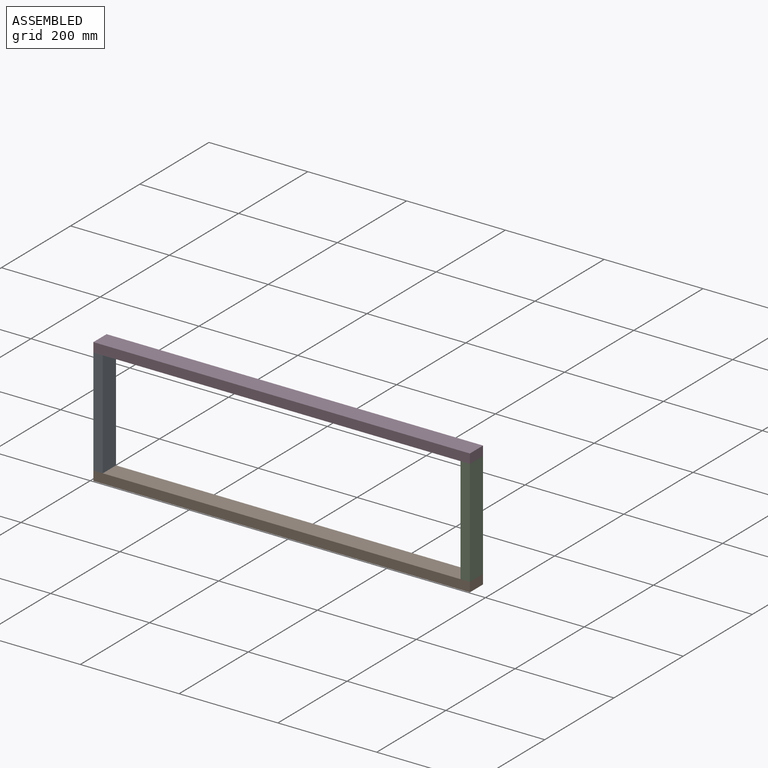
[diagram: assembled view]
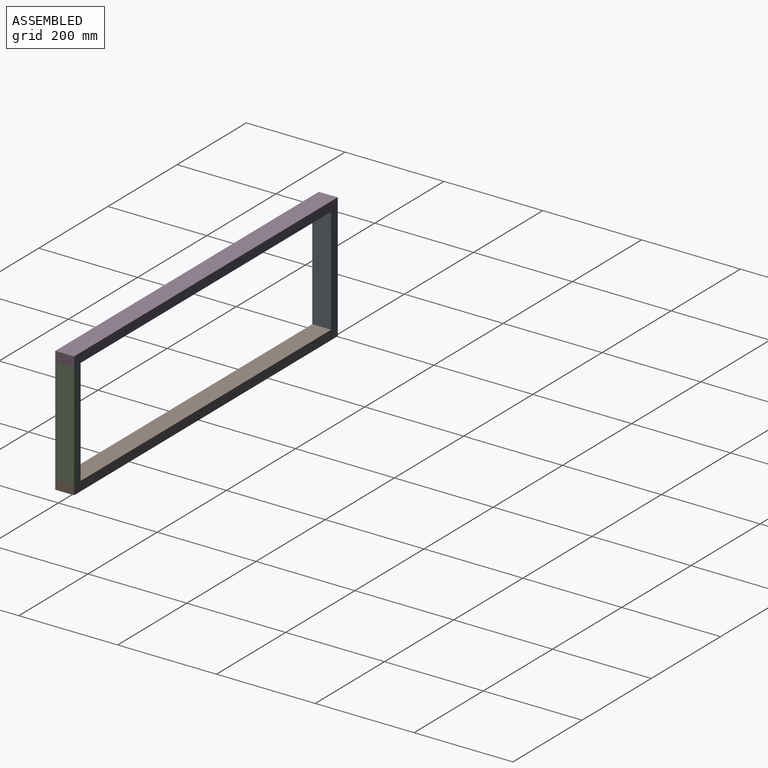
[diagram: assembled view, second angle]
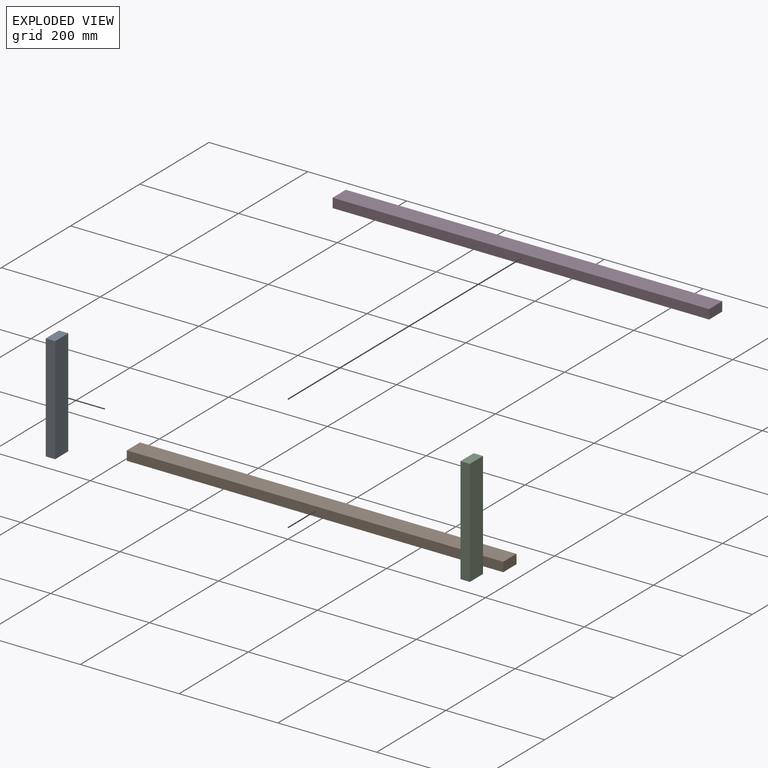
[diagram: exploded view]
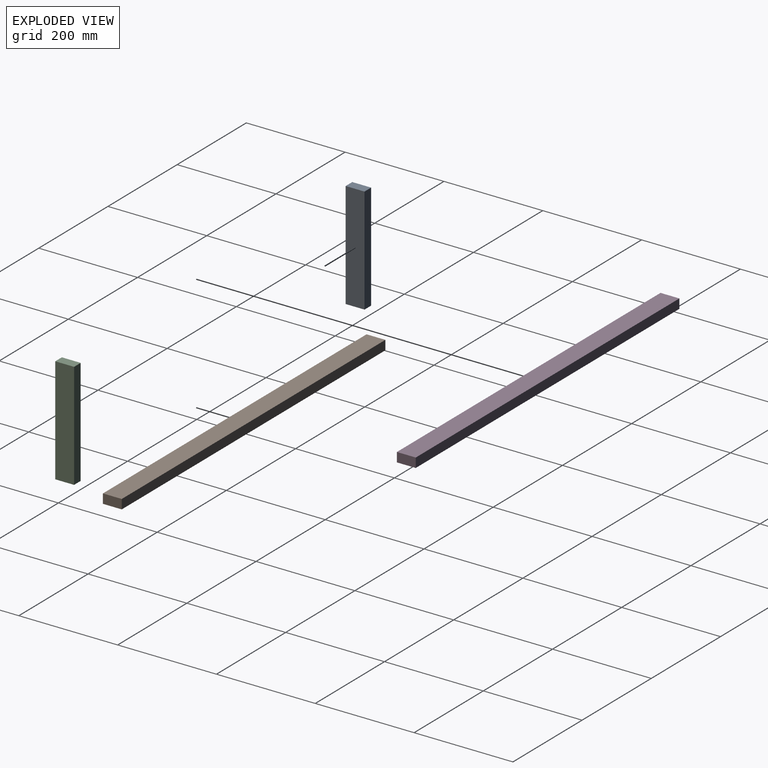
[diagram: exploded view, second angle]
ASSEMBLY  parts=4 mates=9
PART A: 6 faces, bbox 215.9x38.1x19.1 mm
  f0: plane 215.9x38.1mm, normal (0,0,-1), area 8225.8mm2, adj f1,f3,f4,f5
  f1: plane 38.1x19.05mm, normal (1,0,0), area 725.8mm2, adj f0,f2,f4,f5
  f2: plane 215.9x38.1mm, normal (0,0,1), area 8225.8mm2, adj f1,f3,f4,f5
  f3: plane 38.1x19.05mm, normal (-1,0,0), area 725.8mm2, adj f0,f2,f4,f5
  f4: plane 215.9x19.05mm, normal (0,-1,0), area 4112.9mm2, adj f0,f1,f2,f3
  f5: plane 215.9x19.05mm, normal (0,1,0), area 4112.9mm2, adj f0,f1,f2,f3
PART B: 6 faces, bbox 762x38.1x19.1 mm
  f0: plane 762x38.1mm, normal (0,0,-1), area 29032.2mm2, adj f1,f3,f4,f5
  f1: plane 38.1x19.05mm, normal (1,0,0), area 725.8mm2, adj f0,f2,f4,f5
  f2: plane 762x38.1mm, normal (0,0,1), area 29032.2mm2, adj f1,f3,f4,f5
  f3: plane 38.1x19.05mm, normal (-1,0,0), area 725.8mm2, adj f0,f2,f4,f5
  f4: plane 762x19.05mm, normal (0,-1,0), area 14516.1mm2, adj f0,f1,f2,f3
  f5: plane 762x19.05mm, normal (0,1,0), area 14516.1mm2, adj f0,f1,f2,f3
PART C: same geometry as A
PART D: same geometry as B
PLACE A rot(axis=(0,-1,0),90deg) t=(-1361.16,19.05,251.37)mm
PLACE B t=(-618.21,19.05,16.42)mm
PLACE C rot(axis=(0,-1,0),90deg) t=(-618.21,19.05,251.37)mm
PLACE D t=(-618.21,19.05,251.37)mm
MATE planar D.f5 <-> A.f5  axis (0,1,0) through (-999.21,19.05,260.9)mm
MATE planar D.f5 <-> C.f5  axis (0,1,0) through (-999.21,19.05,260.9)mm
MATE planar A.f2 <-> B.f3  axis (-1,0,0) through (-1380.21,0,143.42)mm
MATE planar C.f5 <-> B.f5  axis (0,1,0) through (-627.73,19.05,143.42)mm
MATE planar C.f1 <-> D.f0  axis (0,0,1) through (-627.73,0,251.37)mm
MATE planar D.f1 <-> C.f0  axis (1,0,0) through (-618.21,0,260.9)mm
MATE planar B.f2 <-> C.f3  axis (0,0,1) through (-999.21,0,35.47)mm
MATE planar C.f0 <-> B.f1  axis (1,0,0) through (-618.21,0,143.42)mm
MATE planar A.f3 <-> B.f2  axis (0,0,-1) through (-1370.68,0,35.47)mm
